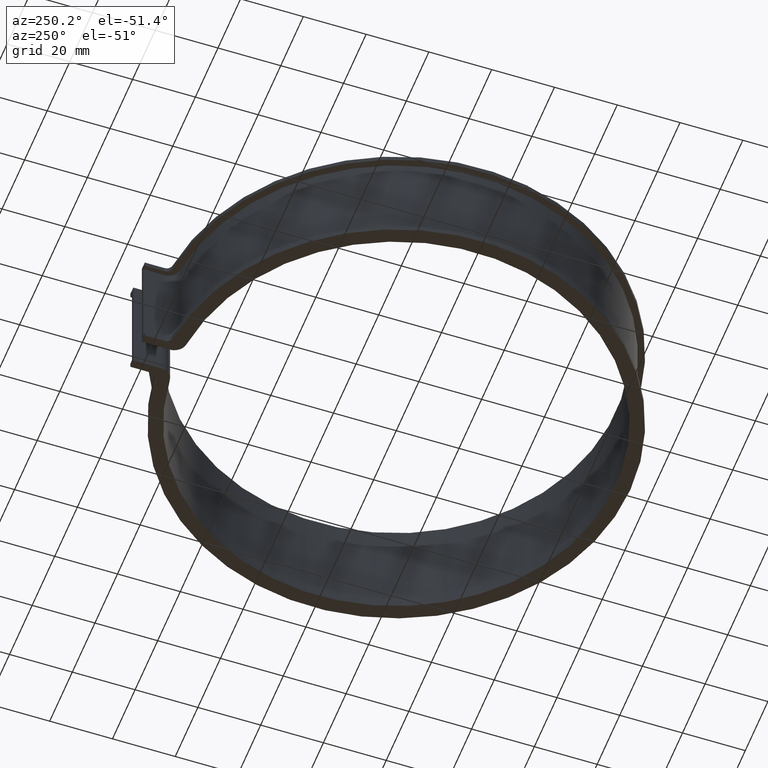
[diagram: clean part render]
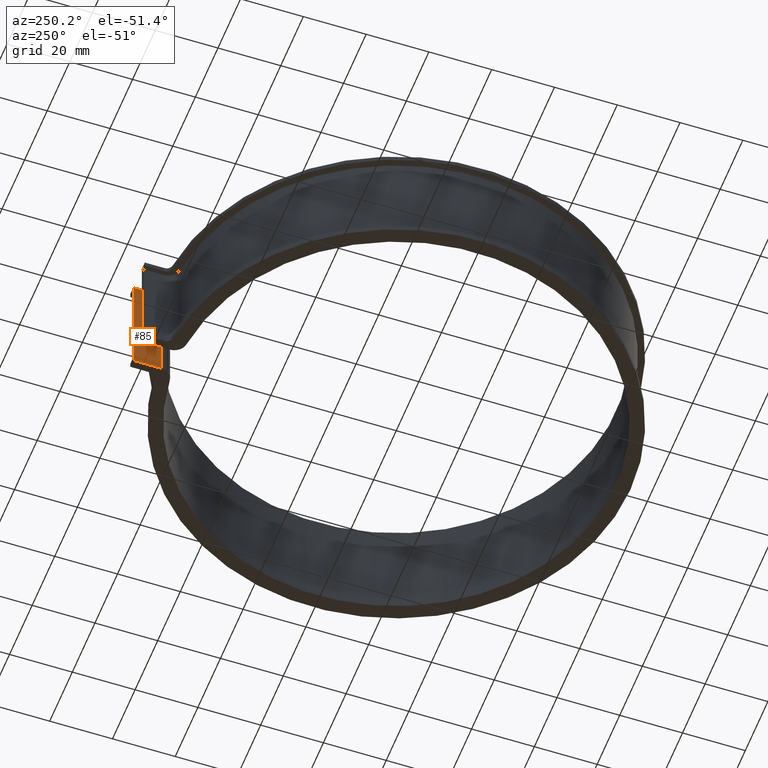
[diagram: same view with one face highlighted and labeled with its STEP entity id]
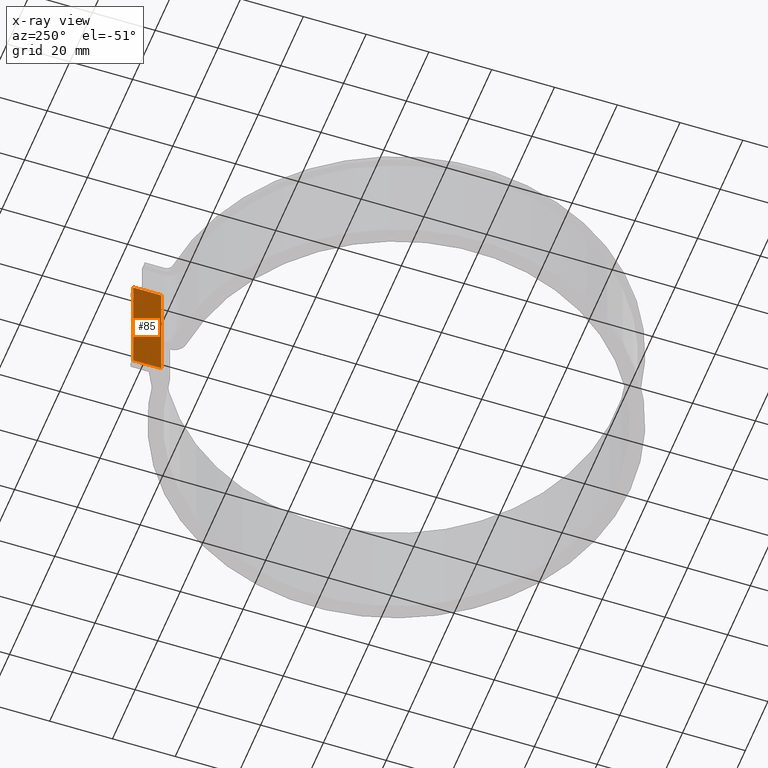
[diagram: x-ray of the same camera — body ghosted, the highlighted face saturated]
A machine part, auxiliary view. The second image highlights one B-rep face of the part: STEP entity #85.
The next image is the same camera in x-ray: the body ghosted, the highlighted face saturated — about 0% of this face is hidden behind the body in this view.
In plain terms, the highlighted planar face has unit normal (-1, 0, 0).
Its self-contained STEP definition (entity closure, byte-faithful):
#85 = ADVANCED_FACE( '', ( #122 ), #123, .T. );
#122 = FACE_OUTER_BOUND( '', #174, .T. );
#123 = PLANE( '', #175 );
#174 = EDGE_LOOP( '', ( #304, #305, #306, #307 ) );
#175 = AXIS2_PLACEMENT_3D( '', #308, #309, #310 );
#304 = ORIENTED_EDGE( '', *, *, #430, .T. );
#305 = ORIENTED_EDGE( '', *, *, #463, .F. );
#306 = ORIENTED_EDGE( '', *, *, #480, .F. );
#307 = ORIENTED_EDGE( '', *, *, #481, .T. );
#308 = CARTESIAN_POINT( '', ( 3.80000000000000, 82.4000000000000, -32.0000000000000 ) );
#309 = DIRECTION( '', ( -1.00000000000000, 4.16333634234434E-017, 0.000000000000000 ) );
#310 = DIRECTION( '', ( 4.16333634234434E-017, 1.00000000000000, 0.000000000000000 ) );
#430 = EDGE_CURVE( '', #505, #503, #506, .T. );
#463 = EDGE_CURVE( '', #565, #503, #567, .T. );
#480 = EDGE_CURVE( '', #595, #565, #596, .T. );
#481 = EDGE_CURVE( '', #595, #505, #597, .T. );
#503 = VERTEX_POINT( '', #624 );
#505 = VERTEX_POINT( '', #626 );
#506 = LINE( '', #627, #628 );
#565 = VERTEX_POINT( '', #706 );
#567 = LINE( '', #709, #710 );
#595 = VERTEX_POINT( '', #746 );
#596 = LINE( '', #747, #748 );
#597 = LINE( '', #749, #750 );
#624 = CARTESIAN_POINT( '', ( 3.80000000000000, 73.4872097714970, 1.50000000000000 ) );
#626 = CARTESIAN_POINT( '', ( 3.80000000000000, 73.4872097714970, -33.5000000000000 ) );
#627 = CARTESIAN_POINT( '', ( 3.80000000000000, 73.4872097714970, -32.0000000000000 ) );
#628 = VECTOR( '', #792, 1000.00000000000 );
#706 = CARTESIAN_POINT( '', ( 3.80000000000001, 82.4000000000000, 1.50000000000000 ) );
#709 = CARTESIAN_POINT( '', ( 3.80000000000000, 82.4000000000000, 1.50000000000000 ) );
#710 = VECTOR( '', #849, 1000.00000000000 );
#746 = CARTESIAN_POINT( '', ( 3.80000000000001, 82.4000000000000, -33.5000000000000 ) );
#747 = CARTESIAN_POINT( '', ( 3.79999999999997, 82.4000000000000, -32.0000000000000 ) );
#748 = VECTOR( '', #882, 1000.00000000000 );
#749 = CARTESIAN_POINT( '', ( 3.80000000000000, 82.4000000000000, -33.5000000000000 ) );
#750 = VECTOR( '', #883, 1000.00000000000 );
#792 = DIRECTION( '', ( 0.000000000000000, 0.000000000000000, 1.00000000000000 ) );
#849 = DIRECTION( '', ( -6.00481203222741E-017, -1.00000000000000, 0.000000000000000 ) );
#882 = DIRECTION( '', ( 0.000000000000000, 0.000000000000000, 1.00000000000000 ) );
#883 = DIRECTION( '', ( -6.00481203222741E-017, -1.00000000000000, 0.000000000000000 ) );